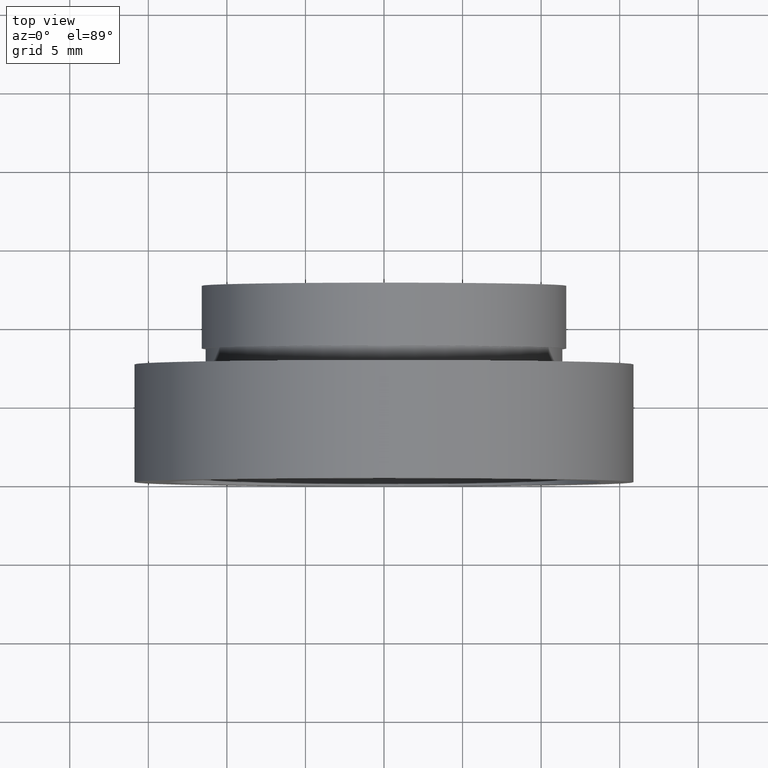
[diagram: clean part render]
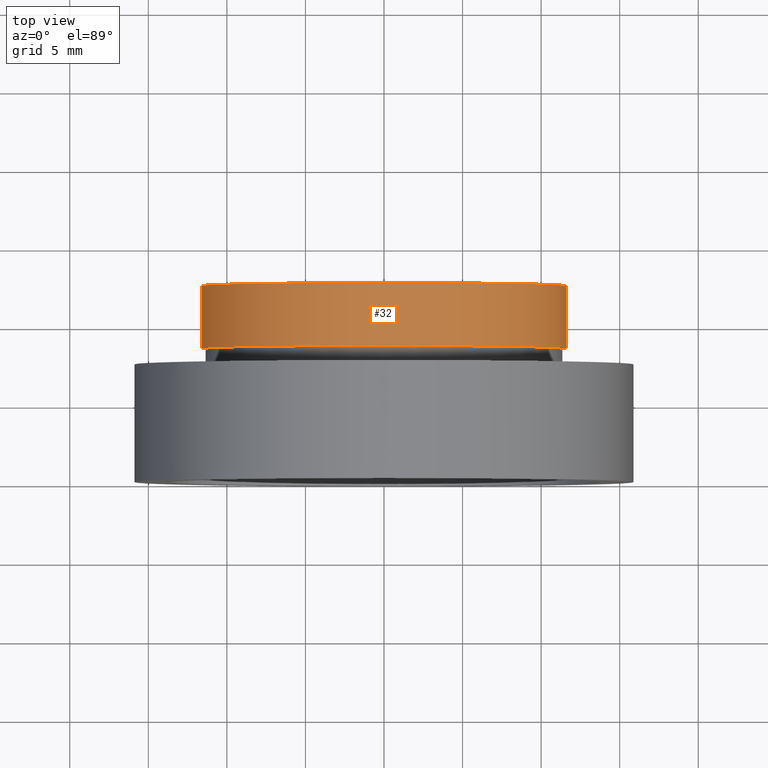
[diagram: same view with one face highlighted and labeled with its STEP entity id]
A machine part, top view. The second image highlights one B-rep face of the part: STEP entity #32.
In plain terms, the highlighted cylindrical surface (partial cylindrical patch) has radius 11.6 mm, axis along (-0, 1, -0).
Its self-contained STEP definition (entity closure, byte-faithful):
#4 = CARTESIAN_POINT ( 'NONE',  ( 11.60000000000000000, 8.500000000000000000, 1.420590287010929500E-015 ) ) ;
#23 = VECTOR ( 'NONE', #519, 1000.000000000000000 ) ;
#27 = DIRECTION ( 'NONE',  ( -1.224646799147351000E-016, 1.000000000000000000, -0.0000000000000000000 ) ) ;
#32 = ADVANCED_FACE ( 'NONE', ( #364 ), #481, .T. ) ;
#34 = CARTESIAN_POINT ( 'NONE',  ( 0.0000000000000000000, 16.88601823708207700, 0.0000000000000000000 ) ) ;
#39 = CIRCLE ( 'NONE', #601, 11.59999999999999800 ) ;
#54 = CIRCLE ( 'NONE', #578, 11.60000000000000000 ) ;
#58 = VERTEX_POINT ( 'NONE', #4 ) ;
#78 = LINE ( 'NONE', #133, #23 ) ;
#79 = CARTESIAN_POINT ( 'NONE',  ( 5.371323195044472300E-016, 12.49999999999999800, 0.0000000000000000000 ) ) ;
#94 = EDGE_CURVE ( 'NONE', #351, #476, #78, .T. ) ;
#108 = ORIENTED_EDGE ( 'NONE', *, *, #237, .T. ) ;
#115 = LINE ( 'NONE', #501, #573 ) ;
#120 = DIRECTION ( 'NONE',  ( -1.000000000000000000, -1.495451272393799300E-016, 0.0000000000000000000 ) ) ;
#126 = CARTESIAN_POINT ( 'NONE',  ( 1.026991039163387700E-015, 8.499999999999998200, 0.0000000000000000000 ) ) ;
#133 = CARTESIAN_POINT ( 'NONE',  ( -11.60000000000000000, 16.88601823708207700, 0.0000000000000000000 ) ) ;
#145 = ORIENTED_EDGE ( 'NONE', *, *, #460, .F. ) ;
#168 = DIRECTION ( 'NONE',  ( -1.224646799147351000E-016, 1.000000000000000000, -0.0000000000000000000 ) ) ;
#237 = EDGE_CURVE ( 'NONE', #351, #58, #39, .T. ) ;
#256 = AXIS2_PLACEMENT_3D ( 'NONE', #34, #286, #531 ) ;
#286 = DIRECTION ( 'NONE',  ( -1.224646799147351000E-016, 1.000000000000000000, -0.0000000000000000000 ) ) ;
#291 = CARTESIAN_POINT ( 'NONE',  ( -11.59999999999999600, 8.499999999999996400, 0.0000000000000000000 ) ) ;
#314 = DIRECTION ( 'NONE',  ( -1.224646799147351000E-016, 1.000000000000000000, -0.0000000000000000000 ) ) ;
#351 = VERTEX_POINT ( 'NONE', #291 ) ;
#364 = FACE_OUTER_BOUND ( 'NONE', #405, .T. ) ;
#377 = ORIENTED_EDGE ( 'NONE', *, *, #558, .T. ) ;
#405 = EDGE_LOOP ( 'NONE', ( #108, #377, #145, #589 ) ) ;
#418 = CARTESIAN_POINT ( 'NONE',  ( 11.60000000000000000, 12.50000000000000000, 1.420590287010929500E-015 ) ) ;
#431 = CARTESIAN_POINT ( 'NONE',  ( -11.60000000000000000, 12.49999999999999600, 0.0000000000000000000 ) ) ;
#449 = VERTEX_POINT ( 'NONE', #418 ) ;
#451 = DIRECTION ( 'NONE',  ( -1.000000000000000000, -1.495451272393799500E-016, 0.0000000000000000000 ) ) ;
#460 = EDGE_CURVE ( 'NONE', #476, #449, #54, .T. ) ;
#476 = VERTEX_POINT ( 'NONE', #431 ) ;
#481 = CYLINDRICAL_SURFACE ( 'NONE', #256, 11.60000000000000000 ) ;
#501 = CARTESIAN_POINT ( 'NONE',  ( 11.60000000000000000, 16.88601823708207700, 1.420590287010929500E-015 ) ) ;
#519 = DIRECTION ( 'NONE',  ( -1.224646799147351000E-016, 1.000000000000000000, -0.0000000000000000000 ) ) ;
#531 = DIRECTION ( 'NONE',  ( -1.000000000000000000, 0.0000000000000000000, 0.0000000000000000000 ) ) ;
#558 = EDGE_CURVE ( 'NONE', #58, #449, #115, .T. ) ;
#573 = VECTOR ( 'NONE', #27, 1000.000000000000000 ) ;
#578 = AXIS2_PLACEMENT_3D ( 'NONE', #79, #314, #120 ) ;
#589 = ORIENTED_EDGE ( 'NONE', *, *, #94, .F. ) ;
#601 = AXIS2_PLACEMENT_3D ( 'NONE', #126, #168, #451 ) ;